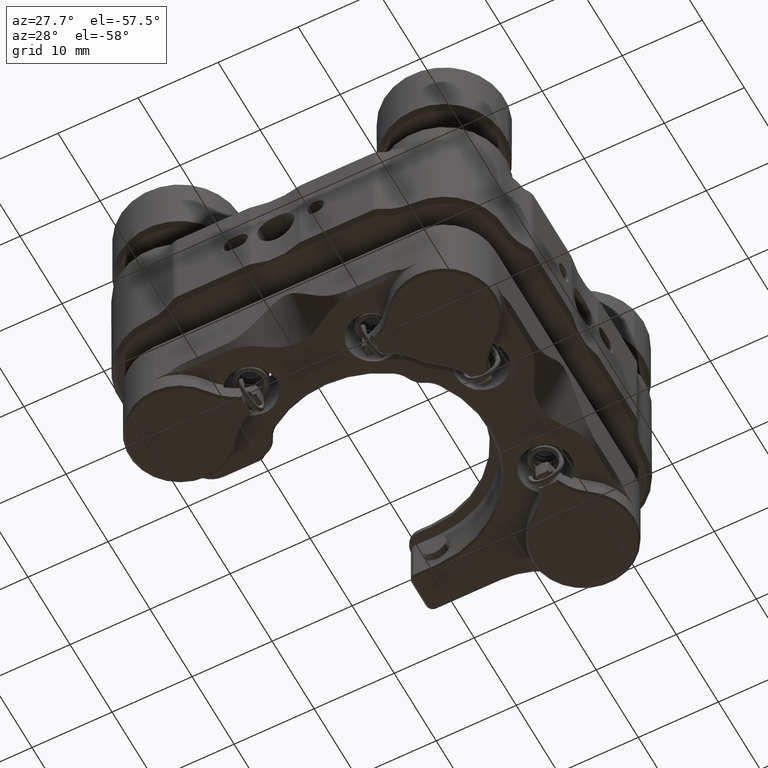
[diagram: clean part render]
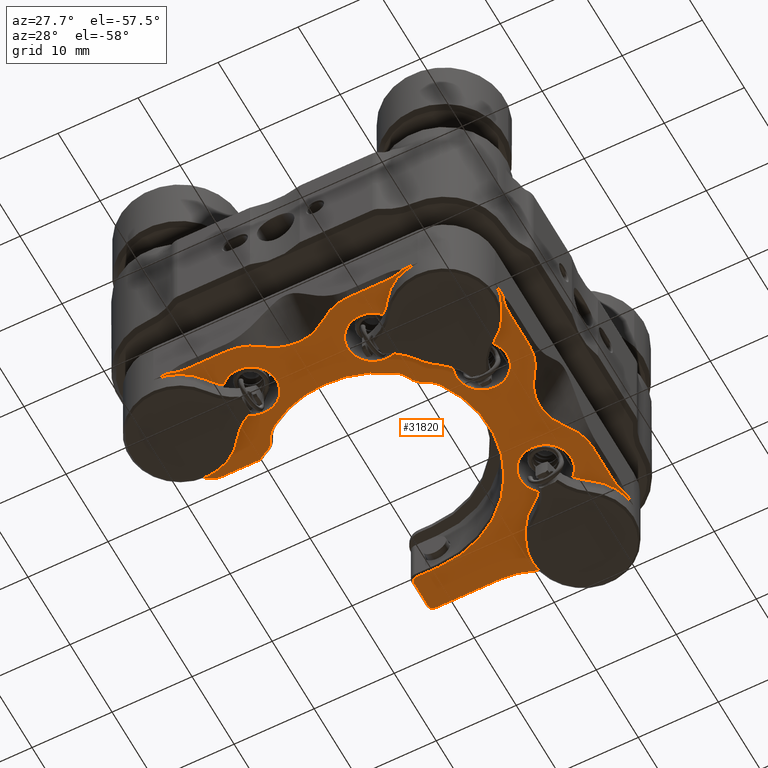
[diagram: same view with one face highlighted and labeled with its STEP entity id]
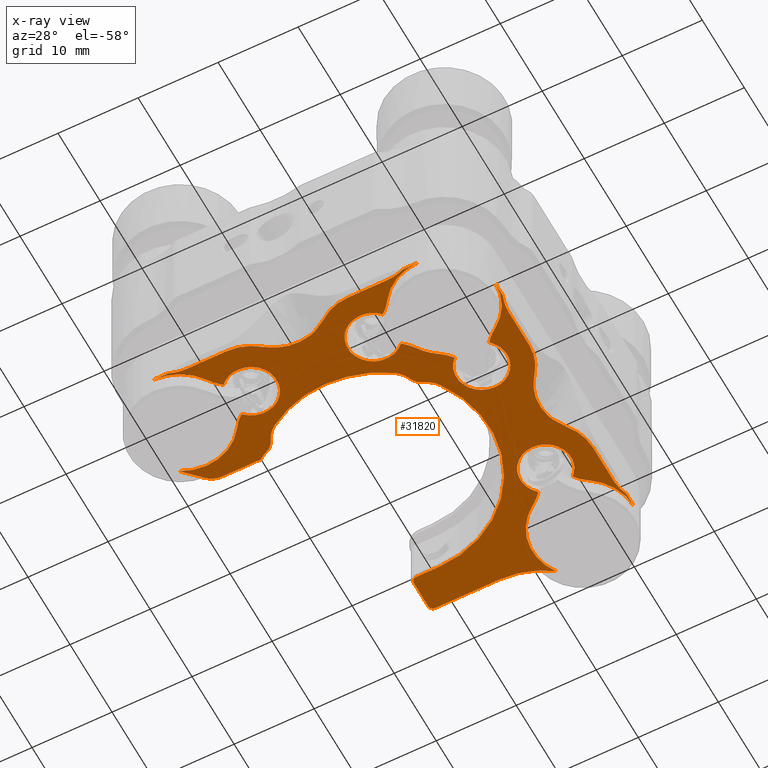
[diagram: x-ray of the same camera — body ghosted, the highlighted face saturated]
A machine part, auxiliary view. The second image highlights one B-rep face of the part: STEP entity #31820.
The next image is the same camera in x-ray: the body ghosted, the highlighted face saturated — about 0% of this face is hidden behind the body in this view.
In plain terms, the highlighted planar face has unit normal (0, 0, -1).
Its self-contained STEP definition (entity closure, byte-faithful):
#333 = CARTESIAN_POINT ( 'NONE',  ( -14.62492424454207729, 6.488614178602564841, 15.51670909685329569 ) ) ;
#360 = CIRCLE ( 'NONE', #36399, 6.477000000000003865 ) ;
#424 = VERTEX_POINT ( 'NONE', #53791 ) ;
#455 = CIRCLE ( 'NONE', #50912, 6.477000000000142421 ) ;
#669 = VECTOR ( 'NONE', #35140, 1000.000000000000000 ) ;
#818 = EDGE_CURVE ( 'NONE', #18316, #7982, #4268, .T. ) ;
#892 = CARTESIAN_POINT ( 'NONE',  ( -10.39521136364875531, 14.26694755603427467, 15.51670909685329391 ) ) ;
#960 = CARTESIAN_POINT ( 'NONE',  ( -15.61990764484549210, 6.920097788274669703, 15.51670909685326905 ) ) ;
#984 = VERTEX_POINT ( 'NONE', #11016 ) ;
#1721 = ORIENTED_EDGE ( 'NONE', *, *, #18592, .T. ) ;
#1784 = VERTEX_POINT ( 'NONE', #25245 ) ;
#1988 = DIRECTION ( 'NONE',  ( 0.000000000000000000, -0.000000000000000000, 1.000000000000000000 ) ) ;
#2828 = CIRCLE ( 'NONE', #62607, 6.349999999999823785 ) ;
#3026 = EDGE_CURVE ( 'NONE', #6349, #49002, #43898, .T. ) ;
#3269 = CIRCLE ( 'NONE', #21799, 6.350000000000057376 ) ;
#3301 = EDGE_CURVE ( 'NONE', #424, #57613, #4409, .T. ) ;
#3365 = EDGE_CURVE ( 'NONE', #11894, #58972, #43562, .T. ) ;
#3416 = EDGE_CURVE ( 'NONE', #49002, #10222, #59325, .T. ) ;
#3982 = VERTEX_POINT ( 'NONE', #4454 ) ;
#4015 = ORIENTED_EDGE ( 'NONE', *, *, #42541, .T. ) ;
#4036 = CARTESIAN_POINT ( 'NONE',  ( 2.037972884518743477, 35.49285773074532102, 15.51670909685322997 ) ) ;
#4098 = VERTEX_POINT ( 'NONE', #42872 ) ;
#4142 = CARTESIAN_POINT ( 'NONE',  ( 3.361159144591275183, 22.72973785281525849, 15.51670909685329391 ) ) ;
#4263 = EDGE_CURVE ( 'NONE', #23777, #7982, #38441, .T. ) ;
#4268 = LINE ( 'NONE', #20077, #63044 ) ;
#4330 = ORIENTED_EDGE ( 'NONE', *, *, #6463, .T. ) ;
#4409 = CIRCLE ( 'NONE', #27103, 3.250000000094590558 ) ;
#4454 = CARTESIAN_POINT ( 'NONE',  ( -31.60358071412598591, 8.549737292804435285, 15.51670909685329214 ) ) ;
#4629 = CARTESIAN_POINT ( 'NONE',  ( 0.3861615935071326389, 31.89590725106113922, 15.51670909685328326 ) ) ;
#4667 = ORIENTED_EDGE ( 'NONE', *, *, #43275, .T. ) ;
#4730 = CIRCLE ( 'NONE', #42861, 3.174999999999997158 ) ;
#4766 = ORIENTED_EDGE ( 'NONE', *, *, #6614, .T. ) ;
#4855 = CARTESIAN_POINT ( 'NONE',  ( -18.24621145719474313, 8.654519140301195179, 15.51670909685329747 ) ) ;
#4893 = VECTOR ( 'NONE', #53987, 1000.000000000000114 ) ;
#4945 = CIRCLE ( 'NONE', #41012, 6.349999999999520917 ) ;
#5054 = LINE ( 'NONE', #39574, #59817 ) ;
#5123 = CARTESIAN_POINT ( 'NONE',  ( 8.059857796865008694, 41.07009739724850306, 15.51670909685332056 ) ) ;
#5434 = DIRECTION ( 'NONE',  ( 0.000000000000000000, 1.000000000000000000, 0.000000000000000000 ) ) ;
#5448 = EDGE_CURVE ( 'NONE', #30676, #15930, #10668, .T. ) ;
#5535 = VERTEX_POINT ( 'NONE', #47456 ) ;
#5591 = CARTESIAN_POINT ( 'NONE',  ( -23.18884826638640462, 46.73409739722249157, 15.51670909682699318 ) ) ;
#5619 = ORIENTED_EDGE ( 'NONE', *, *, #31864, .T. ) ;
#5677 = DIRECTION ( 'NONE',  ( 1.000000000000000000, 0.000000000000000000, 0.000000000000000000 ) ) ;
#5714 = CARTESIAN_POINT ( 'NONE',  ( -1.685998107601222484, 38.57773429998619008, 15.51670909685328681 ) ) ;
#5800 = DIRECTION ( 'NONE',  ( -1.000000000000000000, 1.702056126997398924E-37, -6.132303471447327340E-21 ) ) ;
#5894 = CARTESIAN_POINT ( 'NONE',  ( -16.49245189026396474, 7.506371735881954166, 15.51670909685328503 ) ) ;
#5905 = CIRCLE ( 'NONE', #32646, 6.477000000000018076 ) ;
#5918 = VERTEX_POINT ( 'NONE', #49375 ) ;
#5982 = CARTESIAN_POINT ( 'NONE',  ( 0.7688773949802161223, 32.48049377337137145, 15.51670909685328681 ) ) ;
#6035 = VECTOR ( 'NONE', #8340, 1000.000000000000000 ) ;
#6083 = ORIENTED_EDGE ( 'NONE', *, *, #28316, .T. ) ;
#6113 = DIRECTION ( 'NONE',  ( 0.000000000000000000, -0.000000000000000000, 1.000000000000000000 ) ) ;
#6131 = EDGE_CURVE ( 'NONE', #38394, #15618, #30319, .T. ) ;
#6349 = VERTEX_POINT ( 'NONE', #59685 ) ;
#6424 = DIRECTION ( 'NONE',  ( -1.000000000000000000, 1.197522604163073116E-14, 0.000000000000000000 ) ) ;
#6463 = EDGE_CURVE ( 'NONE', #984, #6349, #49996, .T. ) ;
#6503 = CARTESIAN_POINT ( 'NONE',  ( -3.838848266386599928, 21.00409739724843661, 15.51670909685329391 ) ) ;
#6546 = AXIS2_PLACEMENT_3D ( 'NONE', #23539, #43537, #14481 ) ;
#6599 = CARTESIAN_POINT ( 'NONE',  ( -35.94646370033625971, 17.76409739724885384, 15.51670909680989752 ) ) ;
#6614 = EDGE_CURVE ( 'NONE', #11164, #46478, #360, .T. ) ;
#6685 = ORIENTED_EDGE ( 'NONE', *, *, #6131, .T. ) ;
#6949 = AXIS2_PLACEMENT_3D ( 'NONE', #49464, #50088, #21058 ) ;
#7100 = B_SPLINE_CURVE_WITH_KNOTS ( 'NONE', 3,
 ( #9507, #38563, #57920, #4036, #43096, #37924, #33069, #58878, #58241, #14032, #33391, #18570, #62765, #38239 ),
 .UNSPECIFIED., .F., .F.,
 ( 4, 1, 1, 1, 1, 1, 1, 1, 1, 1, 1, 4 ),
 ( 6.992893892674702526E-18, 0.0003477382795704050174, 0.0006951841594477878219, 0.001043483771312155852, 0.001393728023705116757, 0.001746971241152115361, 0.002125363837821009957, 0.002501072287317570794, 0.002873124663768459371, 0.003242771926865121307, 0.003611307865072148696, 0.003980093098585028681 ),
 .UNSPECIFIED. ) ;
#7253 = VERTEX_POINT ( 'NONE', #62537 ) ;
#7407 = DIRECTION ( 'NONE',  ( 1.000000000000000000, -1.261617073490087482E-14, 0.000000000000000000 ) ) ;
#7454 = CARTESIAN_POINT ( 'NONE',  ( 1.786634952259489761, 22.90017337540389875, 15.51670909685327970 ) ) ;
#7466 = CIRCLE ( 'NONE', #48705, 5.983382579064636886 ) ;
#7902 = CARTESIAN_POINT ( 'NONE',  ( -26.04013493042711502, 20.03927031059683728, 15.51670909686371402 ) ) ;
#7982 = VERTEX_POINT ( 'NONE', #40253 ) ;
#8063 = DIRECTION ( 'NONE',  ( 1.000000000000000000, -1.702056126997398924E-37, 6.132303471447327340E-21 ) ) ;
#8277 = VERTEX_POINT ( 'NONE', #35965 ) ;
#8340 = DIRECTION ( 'NONE',  ( -0.000000000000000000, -1.000000000000000000, -2.775557561562890118E-17 ) ) ;
#8534 = AXIS2_PLACEMENT_3D ( 'NONE', #44223, #50318, #25166 ) ;
#8768 = VERTEX_POINT ( 'NONE', #58666 ) ;
#9000 = EDGE_CURVE ( 'NONE', #15618, #984, #7466, .T. ) ;
#9004 = CARTESIAN_POINT ( 'NONE',  ( -29.02820644543855266, 18.76101813620716641, 15.51670909684858479 ) ) ;
#9018 = EDGE_CURVE ( 'NONE', #23777, #60095, #49724, .T. ) ;
#9049 = CARTESIAN_POINT ( 'NONE',  ( -24.49575477821458236, 7.281151687840906384, 15.51670909685305233 ) ) ;
#9357 = CARTESIAN_POINT ( 'NONE',  ( -13.15054098326073984, 6.205515148600590614, 15.51670909685326194 ) ) ;
#9360 = CARTESIAN_POINT ( 'NONE',  ( -25.47332380939019103, 6.722090202085043487, 15.51670909685303812 ) ) ;
#9507 = CARTESIAN_POINT ( 'NONE',  ( 2.076475217800556994, 36.18992986962069125, 15.51670909685328859 ) ) ;
#9779 = CARTESIAN_POINT ( 'NONE',  ( -0.3792700094390553112, 26.52146058805659123, 15.51670909685329036 ) ) ;
#9786 = CARTESIAN_POINT ( 'NONE',  ( -39.92470213663720813, 17.67494625747400150, 15.51670909685328681 ) ) ;
#9882 = CIRCLE ( 'NONE', #33533, 6.349999999999912603 ) ;
#10008 = CARTESIAN_POINT ( 'NONE',  ( -15.30284215189889530, 6.758897102431241422, 15.51670909685327793 ) ) ;
#10011 = CARTESIAN_POINT ( 'NONE',  ( -11.66949008744802541, 18.76101813620694614, 15.51670909680818866 ) ) ;
#10016 = CIRCLE ( 'NONE', #46083, 3.250000000017558399 ) ;
#10179 = DIRECTION ( 'NONE',  ( 6.132303471447327340E-21, 2.775557561562890118E-17, -1.000000000000000000 ) ) ;
#10222 = VERTEX_POINT ( 'NONE', #46207 ) ;
#10267 = CARTESIAN_POINT ( 'NONE',  ( -26.24320781081958742, 4.914089986270825605, 15.51670909685329214 ) ) ;
#10351 = CIRCLE ( 'NONE', #30984, 0.5499999999756255420 ) ;
#10561 = EDGE_CURVE ( 'NONE', #62752, #35923, #58760, .T. ) ;
#10668 = CIRCLE ( 'NONE', #13756, 6.349999999999823785 ) ;
#11016 = CARTESIAN_POINT ( 'NONE',  ( -7.902848266386782505, 6.198773913061501162, 15.51670909685332589 ) ) ;
#11121 = CARTESIAN_POINT ( 'NONE',  ( -14.45448872195326651, 4.914089986270841592, 15.51670909685329214 ) ) ;
#11164 = VERTEX_POINT ( 'NONE', #43911 ) ;
#11184 = VERTEX_POINT ( 'NONE', #58737 ) ;
#11325 = EDGE_CURVE ( 'NONE', #8277, #40603, #39708, .T. ) ;
#11894 = VERTEX_POINT ( 'NONE', #16140 ) ;
#12098 = EDGE_CURVE ( 'NONE', #5535, #11894, #40334, .T. ) ;
#12495 = DIRECTION ( 'NONE',  ( -8.604808798927877477E-31, -6.401193638290803747E-17, 1.000000000000000000 ) ) ;
#12755 = CIRCLE ( 'NONE', #21034, 6.476999999999836888 ) ;
#12805 = VERTEX_POINT ( 'NONE', #45736 ) ;
#12869 = DIRECTION ( 'NONE',  ( -0.000000000000000000, -0.000000000000000000, -1.000000000000000000 ) ) ;
#12939 = AXIS2_PLACEMENT_3D ( 'NONE', #29775, #49765, #15565 ) ;
#12943 = EDGE_CURVE ( 'NONE', #58972, #8768, #36049, .T. ) ;
#12946 = CARTESIAN_POINT ( 'NONE',  ( -37.89100734858389075, 19.70864104549656304, 15.51670909683159216 ) ) ;
#13005 = ORIENTED_EDGE ( 'NONE', *, *, #38390, .T. ) ;
#13282 = ORIENTED_EDGE ( 'NONE', *, *, #3301, .T. ) ;
#13414 = CARTESIAN_POINT ( 'NONE',  ( -23.73884826638870038, 42.72409739724872679, 15.51670909685552679 ) ) ;
#13470 = B_SPLINE_CURVE_WITH_KNOTS ( 'NONE', 3,
 ( #15579, #4629, #34945, #29149, #9779, #29469, #23991 ),
 .UNSPECIFIED., .F., .F.,
 ( 4, 1, 1, 1, 4 ),
 ( 0.000000000000000000, 0.002096372190921901978, 0.004192744381843768395, 0.006289116572765650857, 0.008385488763687514238 ),
 .UNSPECIFIED. ) ;
#13756 = AXIS2_PLACEMENT_3D ( 'NONE', #35880, #31029, #40401 ) ;
#13771 = EDGE_CURVE ( 'NONE', #54715, #26308, #52933, .T. ) ;
#13900 = DIRECTION ( 'NONE',  ( 6.132303471447328092E-21, 2.775557561562890427E-17, -1.000000000000000000 ) ) ;
#14032 = CARTESIAN_POINT ( 'NONE',  ( 1.386260972580441786, 33.40974970336114325, 15.51670909685327260 ) ) ;
#14065 = AXIS2_PLACEMENT_3D ( 'NONE', #27356, #12495, #47040 ) ;
#14313 = DIRECTION ( 'NONE',  ( -0.000000000000000000, -1.000000000000000000, -2.775557561562890118E-17 ) ) ;
#14333 = ORIENTED_EDGE ( 'NONE', *, *, #42410, .T. ) ;
#14469 = CARTESIAN_POINT ( 'NONE',  ( -9.055216516440953711, 21.13701639744731153, 15.51670909681782540 ) ) ;
#14481 = DIRECTION ( 'NONE',  ( 0.000000000000000000, 1.000000000000000000, 0.000000000000000000 ) ) ;
#14771 = ORIENTED_EDGE ( 'NONE', *, *, #4263, .F. ) ;
#14849 = CARTESIAN_POINT ( 'NONE',  ( -13.52267543826980223, 6.242103107961149533, 15.51670909685330280 ) ) ;
#15157 = VERTEX_POINT ( 'NONE', #5982 ) ;
#15312 = EDGE_CURVE ( 'NONE', #29187, #7253, #12755, .T. ) ;
#15516 = CIRCLE ( 'NONE', #45408, 5.983382579064534745 ) ;
#15565 = DIRECTION ( 'NONE',  ( 0.000000000000000000, 1.000000000000000000, 0.000000000000000000 ) ) ;
#15579 = CARTESIAN_POINT ( 'NONE',  ( 0.7688773949802161223, 32.48049377337137145, 15.51670909685328681 ) ) ;
#15618 = VERTEX_POINT ( 'NONE', #37552 ) ;
#15748 = DIRECTION ( 'NONE',  ( -1.000000000000000000, 1.197522604163073116E-14, 0.000000000000000000 ) ) ;
#15819 = DIRECTION ( 'NONE',  ( -1.000000000000000000, 1.702056126997398924E-37, -6.132303471447327340E-21 ) ) ;
#15845 = CARTESIAN_POINT ( 'NONE',  ( -7.403208370831027452, 17.36936494950948884, 15.51670909685329214 ) ) ;
#15930 = VERTEX_POINT ( 'NONE', #23683 ) ;
#15937 = ORIENTED_EDGE ( 'NONE', *, *, #53037, .T. ) ;
#16001 = CARTESIAN_POINT ( 'NONE',  ( -9.094115818647294347, 8.549737292804126199, 15.51670909685329214 ) ) ;
#16140 = CARTESIAN_POINT ( 'NONE',  ( -32.79484826638694983, 6.198773913061867091, 15.51670909685341115 ) ) ;
#16237 = CIRCLE ( 'NONE', #26498, 6.477000000000000313 ) ;
#16292 = VERTEX_POINT ( 'NONE', #5591 ) ;
#16421 = LINE ( 'NONE', #36088, #669 ) ;
#16938 = DIRECTION ( 'NONE',  ( 6.132303471447327340E-21, 2.775557561562890118E-17, -1.000000000000000000 ) ) ;
#17150 = CARTESIAN_POINT ( 'NONE',  ( -27.83592926617011543, 17.33046564732993744, 15.51670909686535715 ) ) ;
#17611 = EDGE_CURVE ( 'NONE', #51672, #4098, #15516, .T. ) ;
#17771 = CARTESIAN_POINT ( 'NONE',  ( -23.73884826636014367, 46.18409739724879870, 15.51670909682699850 ) ) ;
#17776 = CARTESIAN_POINT ( 'NONE',  ( -11.76402117973443850, 22.93281073320791918, 15.51670909678236576 ) ) ;
#17783 = CARTESIAN_POINT ( 'NONE',  ( 1.661647704327814390, 23.24447991452393225, 15.51670909685327437 ) ) ;
#18284 = DIRECTION ( 'NONE',  ( -0.000000000000000000, -0.000000000000000000, -1.000000000000000000 ) ) ;
#18316 = VERTEX_POINT ( 'NONE', #57320 ) ;
#18410 = EDGE_CURVE ( 'NONE', #16292, #54715, #5054, .T. ) ;
#18570 = CARTESIAN_POINT ( 'NONE',  ( 0.9940974430214276625, 32.77100390907634875, 15.51670909685323707 ) ) ;
#18592 = EDGE_CURVE ( 'NONE', #40603, #59001, #10351, .T. ) ;
#18744 = CARTESIAN_POINT ( 'NONE',  ( -25.82175011378088669, 6.577100956720730807, 15.51670909685306476 ) ) ;
#19066 = CARTESIAN_POINT ( 'NONE',  ( -5.940946378557530494, 42.17409739724867990, 15.51670909685328681 ) ) ;
#19161 = LINE ( 'NONE', #9786, #4893 ) ;
#19321 = AXIS2_PLACEMENT_3D ( 'NONE', #37302, #18284, #28276 ) ;
#19711 = DIRECTION ( 'NONE',  ( -1.000000000000000000, 1.702056126997398924E-37, -6.132303471447327340E-21 ) ) ;
#19717 = DIRECTION ( 'NONE',  ( 8.878505979408775095E-16, -1.000000000000000000, 0.000000000000000000 ) ) ;
#20077 = CARTESIAN_POINT ( 'NONE',  ( 2.511151733613322001, 12.11409739724846446, 15.51670909685329214 ) ) ;
#20217 = VERTEX_POINT ( 'NONE', #15845 ) ;
#20334 = CARTESIAN_POINT ( 'NONE',  ( -14.96923078366209481, 6.613601426534242655, 15.51670909685326194 ) ) ;
#20515 = DIRECTION ( 'NONE',  ( 1.000000000000000000, -1.009293658774008952E-14, 0.000000000000000000 ) ) ;
#20520 = B_SPLINE_CURVE_WITH_KNOTS ( 'NONE', 3,
 ( #53568, #62297, #9049, #22940, #57777, #9360, #18744, #48422, #37780, #42953, #38101, #38417, #57135, #29055 ),
 .UNSPECIFIED., .F., .F.,
 ( 4, 1, 1, 1, 1, 1, 1, 1, 1, 1, 1, 4 ),
 ( 0.000000000000000000, 0.0003709251294111492537, 0.0007415995169671750270, 0.001113391677934531679, 0.001487602908054061175, 0.001865491425777216807, 0.002246079665579186167, 0.002601372595551027130, 0.002953649158814848456, 0.003303969797670195004, 0.003653431750713343005, 0.004003187800114374126 ),
 .UNSPECIFIED. ) ;
#20595 = DIRECTION ( 'NONE',  ( 8.697706287643170523E-16, 1.000000000000000000, 2.899235429214390174E-16 ) ) ;
#20688 = VERTEX_POINT ( 'NONE', #9004 ) ;
#20800 = CARTESIAN_POINT ( 'NONE',  ( 2.076475217800485051, 21.05826492487646817, 15.51670909685328859 ) ) ;
#20991 = ORIENTED_EDGE ( 'NONE', *, *, #818, .T. ) ;
#21034 = AXIS2_PLACEMENT_3D ( 'NONE', #41460, #16938, #36597 ) ;
#21058 = DIRECTION ( 'NONE',  ( 1.775701195881755019E-15, -1.000000000000000000, 0.000000000000000000 ) ) ;
#21291 = DIRECTION ( 'NONE',  ( 6.132303471447327340E-21, 2.775557561562890118E-17, -1.000000000000000000 ) ) ;
#21510 = DIRECTION ( 'NONE',  ( -3.774936651295585469E-30, -2.668805347637135898E-16, 1.000000000000000000 ) ) ;
#21799 = AXIS2_PLACEMENT_3D ( 'NONE', #44240, #13900, #19717 ) ;
#21940 = DIRECTION ( 'NONE',  ( -6.132303471447328092E-21, -2.775557561562890427E-17, 1.000000000000000000 ) ) ;
#22019 = DIRECTION ( 'NONE',  ( -1.000000000000000000, 3.202566417189398390E-15, 0.000000000000000000 ) ) ;
#22315 = CARTESIAN_POINT ( 'NONE',  ( 2.074227632838780089, 21.18080093234989292, 15.51670909685328148 ) ) ;
#22336 = ORIENTED_EDGE ( 'NONE', *, *, #49092, .F. ) ;
#22434 = AXIS2_PLACEMENT_3D ( 'NONE', #6599, #40826, #20515 ) ;
#22502 = ORIENTED_EDGE ( 'NONE', *, *, #32174, .T. ) ;
#22586 = EDGE_CURVE ( 'NONE', #34736, #12805, #33549, .T. ) ;
#22940 = CARTESIAN_POINT ( 'NONE',  ( -24.80857185067238646, 7.076290245509763821, 15.51670909685301325 ) ) ;
#22966 = AXIS2_PLACEMENT_3D ( 'NONE', #43194, #33488, #62864 ) ;
#23005 = VECTOR ( 'NONE', #19711, 1000.000000000000000 ) ;
#23142 = ORIENTED_EDGE ( 'NONE', *, *, #60321, .T. ) ;
#23284 = CARTESIAN_POINT ( 'NONE',  ( 2.511151733613535164, 43.30900965794319291, 15.51670909685336319 ) ) ;
#23539 = CARTESIAN_POINT ( 'NONE',  ( -15.10383827969751991, 56.98409739724868217, 15.51670909685328859 ) ) ;
#23590 = DIRECTION ( 'NONE',  ( -6.132303471447327340E-21, -2.775557561562890118E-17, 1.000000000000000000 ) ) ;
#23683 = CARTESIAN_POINT ( 'NONE',  ( -31.60358071412591840, 15.67845750169312780, 15.51670909685329214 ) ) ;
#23723 = CARTESIAN_POINT ( 'NONE',  ( -3.838848266386589714, 5.764097397248486132, 15.51670909685329214 ) ) ;
#23777 = VERTEX_POINT ( 'NONE', #46729 ) ;
#23828 = DIRECTION ( 'NONE',  ( 6.132303471447327340E-21, 2.775557561562890118E-17, -1.000000000000000000 ) ) ;
#23991 = CARTESIAN_POINT ( 'NONE',  ( 0.7688773949801654961, 24.76770102112581284, 15.51670909685328503 ) ) ;
#24121 = CIRCLE ( 'NONE', #62240, 3.175000000000000711 ) ;
#24260 = VERTEX_POINT ( 'NONE', #5714 ) ;
#24763 = ORIENTED_EDGE ( 'NONE', *, *, #3365, .T. ) ;
#24789 = DIRECTION ( 'NONE',  ( -1.000000000000000000, -5.327345101181350931E-15, -4.058929600900076824E-15 ) ) ;
#24796 = DIRECTION ( 'NONE',  ( -1.176779250361673425E-30, -2.899235429214391653E-16, 1.000000000000000000 ) ) ;
#24848 = CARTESIAN_POINT ( 'NONE',  ( -16.49245189026396474, 7.506371735881954166, 15.51670909685328503 ) ) ;
#24904 = VECTOR ( 'NONE', #8063, 1000.000000000000000 ) ;
#25038 = DIRECTION ( 'NONE',  ( 1.000000000000000000, -1.702056126997398924E-37, 6.132303471447327340E-21 ) ) ;
#25166 = DIRECTION ( 'NONE',  ( -1.000000000000000000, 1.065922025772045116E-14, -3.769006057978502123E-15 ) ) ;
#25245 = CARTESIAN_POINT ( 'NONE',  ( 2.076475217800556994, 36.18992986962069125, 15.51670909685328859 ) ) ;
#25403 = CIRCLE ( 'NONE', #14065, 13.54999999999998650 ) ;
#25424 = CARTESIAN_POINT ( 'NONE',  ( -36.85884826638675094, 5.764097397248868049, 15.51670909685329214 ) ) ;
#25611 = ORIENTED_EDGE ( 'NONE', *, *, #13771, .T. ) ;
#25649 = CARTESIAN_POINT ( 'NONE',  ( -10.48576900533054967, 19.94473921813964878, 15.51670909675273968 ) ) ;
#25800 = CARTESIAN_POINT ( 'NONE',  ( -23.62065812019933020, 7.889087537355080393, 15.51670909685327970 ) ) ;
#25838 = DIRECTION ( 'NONE',  ( 0.000000000000000000, 1.000000000000000000, 0.000000000000000000 ) ) ;
#26118 = DIRECTION ( 'NONE',  ( -6.132303471447327340E-21, -2.775557561562890118E-17, 1.000000000000000000 ) ) ;
#26131 = CARTESIAN_POINT ( 'NONE',  ( -5.940946378557530494, 6.198773913061876861, 15.51670909685328681 ) ) ;
#26308 = VERTEX_POINT ( 'NONE', #49468 ) ;
#26498 = AXIS2_PLACEMENT_3D ( 'NONE', #35519, #55203, #25838 ) ;
#26582 = VECTOR ( 'NONE', #14313, 1000.000000000000000 ) ;
#27087 = ORIENTED_EDGE ( 'NONE', *, *, #10561, .T. ) ;
#27089 = DIRECTION ( 'NONE',  ( 6.132303471447327340E-21, 2.775557561562890118E-17, -1.000000000000000000 ) ) ;
#27103 = AXIS2_PLACEMENT_3D ( 'NONE', #35804, #6113, #44539 ) ;
#27148 = CARTESIAN_POINT ( 'NONE',  ( 2.069733982261448446, 21.42579011412260570, 15.51670909685329036 ) ) ;
#27150 = VECTOR ( 'NONE', #6424, 1000.000000000000000 ) ;
#27209 = DIRECTION ( 'NONE',  ( 0.000000000000000000, -1.000000000000000000, 0.000000000000000000 ) ) ;
#27356 = CARTESIAN_POINT ( 'NONE',  ( -20.34884826638631594, 28.62409739724868629, 15.51670909685328681 ) ) ;
#27370 = AXIS2_PLACEMENT_3D ( 'NONE', #27409, #27089, #46776 ) ;
#27409 = CARTESIAN_POINT ( 'NONE',  ( -5.940946378557530494, 34.55253646458609040, 15.51670909685328681 ) ) ;
#27896 = EDGE_CURVE ( 'NONE', #43190, #57495, #43879, .T. ) ;
#28043 = CARTESIAN_POINT ( 'NONE',  ( 2.076475217800569428, 34.55253646458609040, 15.51670909685328681 ) ) ;
#28060 = VERTEX_POINT ( 'NONE', #14469 ) ;
#28243 = DIRECTION ( 'NONE',  ( -2.135044278113766224E-15, 1.000000000000000000, 0.000000000000000000 ) ) ;
#28276 = DIRECTION ( 'NONE',  ( 1.000000000000000000, 1.541976423103409484E-15, 0.000000000000000000 ) ) ;
#28316 = EDGE_CURVE ( 'NONE', #3982, #32875, #47001, .T. ) ;
#28660 = ORIENTED_EDGE ( 'NONE', *, *, #42405, .T. ) ;
#28674 = CARTESIAN_POINT ( 'NONE',  ( -7.902848266386818921, 0.2153913339969369956, 15.51670909685334365 ) ) ;
#29055 = CARTESIAN_POINT ( 'NONE',  ( -27.91468073875908118, 6.198773913061875973, 15.51670909685328681 ) ) ;
#29149 = CARTESIAN_POINT ( 'NONE',  ( -0.6961521685797558145, 28.62409739724860458, 15.51670909685328681 ) ) ;
#29187 = VERTEX_POINT ( 'NONE', #29482 ) ;
#29469 = CARTESIAN_POINT ( 'NONE',  ( 0.3861615935070938366, 25.35228754343606639, 15.51670909685329036 ) ) ;
#29482 = CARTESIAN_POINT ( 'NONE',  ( -7.403208370831344531, 39.87882984498799743, 15.51670909685328859 ) ) ;
#29695 = CARTESIAN_POINT ( 'NONE',  ( -14.26259728644955516, 6.383058760446405522, 15.51670909685328503 ) ) ;
#29775 = CARTESIAN_POINT ( 'NONE',  ( -26.24320781081974019, 19.31410480822650300, 15.51670909685329391 ) ) ;
#29864 = DIRECTION ( 'NONE',  ( 0.000000000000000000, 1.000000000000000000, 0.000000000000000000 ) ) ;
#30005 = CARTESIAN_POINT ( 'NONE',  ( -20.34884826638671740, 8.971401299441929211, 15.51670909685329391 ) ) ;
#30319 = LINE ( 'NONE', #30952, #27150 ) ;
#30373 = EDGE_CURVE ( 'NONE', #58128, #43190, #35720, .T. ) ;
#30642 = CARTESIAN_POINT ( 'NONE',  ( -17.07703841257422894, 7.889087537355027990, 15.51670909685329747 ) ) ;
#30676 = VERTEX_POINT ( 'NONE', #34234 ) ;
#30867 = ORIENTED_EDGE ( 'NONE', *, *, #3026, .T. ) ;
#30952 = CARTESIAN_POINT ( 'NONE',  ( -36.85884826638675094, 5.764097397248868049, 15.51670909685329214 ) ) ;
#30984 = AXIS2_PLACEMENT_3D ( 'NONE', #53755, #54721, #5677 ) ;
#31029 = DIRECTION ( 'NONE',  ( 6.132303471447328092E-21, 2.775557561562890427E-17, -1.000000000000000000 ) ) ;
#31592 = DIRECTION ( 'NONE',  ( 0.000000000000000000, 1.000000000000000000, 0.000000000000000000 ) ) ;
#31676 = CARTESIAN_POINT ( 'NONE',  ( 0.8397541805533644821, 24.67647421621655113, 15.51670909685327260 ) ) ;
#31694 = EDGE_CURVE ( 'NONE', #32977, #38394, #9882, .T. ) ;
#31820 = ADVANCED_FACE ( 'NONE', ( #37397 ), #32556, .T. ) ;
#31864 = EDGE_CURVE ( 'NONE', #44028, #16292, #35618, .T. ) ;
#31984 = CARTESIAN_POINT ( 'NONE',  ( 2.033146022900886862, 21.79792456913161303, 15.51670909685326194 ) ) ;
#32174 = EDGE_CURVE ( 'NONE', #59001, #44028, #62891, .T. ) ;
#32249 = CARTESIAN_POINT ( 'NONE',  ( -15.10383827969758741, 46.73409739724873901, 15.51670909685328859 ) ) ;
#32556 = PLANE ( 'NONE',  #27370 ) ;
#32646 = AXIS2_PLACEMENT_3D ( 'NONE', #11121, #10179, #29864 ) ;
#32694 = CIRCLE ( 'NONE', #22434, 2.749999999934971129 ) ;
#32875 = VERTEX_POINT ( 'NONE', #63455 ) ;
#32922 = EDGE_CURVE ( 'NONE', #7253, #24260, #4730, .T. ) ;
#32937 = CARTESIAN_POINT ( 'NONE',  ( 1.355151342587423979, 23.89515677570731356, 15.51670909685327793 ) ) ;
#32977 = VERTEX_POINT ( 'NONE', #16001 ) ;
#33013 = ORIENTED_EDGE ( 'NONE', *, *, #18410, .T. ) ;
#33069 = CARTESIAN_POINT ( 'NONE',  ( 1.816700634818154025, 34.44357408373783613, 15.51670909685324595 ) ) ;
#33209 = EDGE_CURVE ( 'NONE', #5918, #15930, #53123, .T. ) ;
#33391 = CARTESIAN_POINT ( 'NONE',  ( 1.198958885352572334, 33.08382098153410311, 15.51670909685327970 ) ) ;
#33488 = DIRECTION ( 'NONE',  ( 6.132303471447328092E-21, 2.775557561562890427E-17, -1.000000000000000000 ) ) ;
#33533 = AXIS2_PLACEMENT_3D ( 'NONE', #60678, #21940, #56442 ) ;
#33549 = LINE ( 'NONE', #57442, #24904 ) ;
#33668 = CIRCLE ( 'NONE', #40871, 3.174999999999998934 ) ;
#33984 = CARTESIAN_POINT ( 'NONE',  ( -3.838848266386558183, 12.11409739724936507, 15.51670909685329391 ) ) ;
#34234 = CARTESIAN_POINT ( 'NONE',  ( -39.92470213663709444, 17.67494625747410808, 15.51670909685328859 ) ) ;
#34344 = VECTOR ( 'NONE', #5800, 1000.000000000000000 ) ;
#34397 = CIRCLE ( 'NONE', #56066, 3.250000000017560176 ) ;
#34528 = CARTESIAN_POINT ( 'NONE',  ( -16.21884818463415456, 7.293800976714763351, 15.51670909685325483 ) ) ;
#34736 = VERTEX_POINT ( 'NONE', #42453 ) ;
#34945 = CARTESIAN_POINT ( 'NONE',  ( -0.3792700094390220600, 30.72673420644066411, 15.51670909685329214 ) ) ;
#35054 = ORIENTED_EDGE ( 'NONE', *, *, #39220, .T. ) ;
#35140 = DIRECTION ( 'NONE',  ( -6.826743284340432976E-15, -1.000000000000000000, 0.000000000000000000 ) ) ;
#35519 = CARTESIAN_POINT ( 'NONE',  ( -11.03885567736440443, 22.72973785281530823, 15.51670909685329391 ) ) ;
#35600 = ORIENTED_EDGE ( 'NONE', *, *, #9018, .T. ) ;
#35618 = CIRCLE ( 'NONE', #52088, 0.5499999999754451308 ) ;
#35720 = CIRCLE ( 'NONE', #54137, 3.249999999998531841 ) ;
#35804 = CARTESIAN_POINT ( 'NONE',  ( -29.06174009400377756, 22.98569669769974766, 15.51670909675306653 ) ) ;
#35880 = CARTESIAN_POINT ( 'NONE',  ( -36.85884826638667278, 12.11409739724887658, 15.51670909685329214 ) ) ;
#35923 = VERTEX_POINT ( 'NONE', #20800 ) ;
#35965 = CARTESIAN_POINT ( 'NONE',  ( -20.34884826638622002, 42.17409739724867279, 15.51670909685328859 ) ) ;
#36049 = LINE ( 'NONE', #25424, #49811 ) ;
#36056 = ORIENTED_EDGE ( 'NONE', *, *, #42103, .T. ) ;
#36088 = CARTESIAN_POINT ( 'NONE',  ( 2.511151733613322001, 12.11409739724846446, 15.51670909685329569 ) ) ;
#36109 = CARTESIAN_POINT ( 'NONE',  ( -12.72884826638608757, 12.11409739724883572, 15.51670909685329391 ) ) ;
#36189 = CARTESIAN_POINT ( 'NONE',  ( -20.34884826638631949, 28.62409739724868629, 15.51670909685328681 ) ) ;
#36273 = DIRECTION ( 'NONE',  ( -8.697706287643120233E-16, 1.000000000000000000, 2.899235429214373411E-16 ) ) ;
#36373 = ORIENTED_EDGE ( 'NONE', *, *, #36830, .T. ) ;
#36399 = AXIS2_PLACEMENT_3D ( 'NONE', #41282, #41599, #46747 ) ;
#36508 = CARTESIAN_POINT ( 'NONE',  ( 0.7688773949801654961, 24.76770102112581284, 15.51670909685328503 ) ) ;
#36524 = DIRECTION ( 'NONE',  ( 0.000000000000000000, -0.000000000000000000, 1.000000000000000000 ) ) ;
#36597 = DIRECTION ( 'NONE',  ( 0.000000000000000000, 1.000000000000000000, 0.000000000000000000 ) ) ;
#36600 = EDGE_CURVE ( 'NONE', #62921, #51672, #16421, .T. ) ;
#36830 = EDGE_CURVE ( 'NONE', #28060, #8277, #25403, .T. ) ;
#37074 = CARTESIAN_POINT ( 'NONE',  ( -23.18884826638641172, 46.18409739724879159, 15.51670909680069599 ) ) ;
#37302 = CARTESIAN_POINT ( 'NONE',  ( -31.09687134042200185, 17.87607432321333434, 15.51670909683345378 ) ) ;
#37361 = AXIS2_PLACEMENT_3D ( 'NONE', #4142, #23828, #43520 ) ;
#37395 = ORIENTED_EDGE ( 'NONE', *, *, #32922, .T. ) ;
#37397 = FACE_OUTER_BOUND ( 'NONE', #47015, .T. ) ;
#37449 = DIRECTION ( 'NONE',  ( -1.000000000000000000, 0.000000000000000000, 0.000000000000000000 ) ) ;
#37552 = CARTESIAN_POINT ( 'NONE',  ( -5.663936005692040254, 5.764097397248495014, 15.51670909685339517 ) ) ;
#37780 = CARTESIAN_POINT ( 'NONE',  ( -26.51930401474814047, 6.362522059170713007, 15.51670909685305411 ) ) ;
#37924 = CARTESIAN_POINT ( 'NONE',  ( 1.912727071691647129, 34.79455314560993884, 15.51670909685326194 ) ) ;
#38101 = CARTESIAN_POINT ( 'NONE',  ( -27.21760859988353332, 6.237276246343605557, 15.51670909685306832 ) ) ;
#38117 = EDGE_CURVE ( 'NONE', #20688, #42341, #10016, .T. ) ;
#38132 = ORIENTED_EDGE ( 'NONE', *, *, #31694, .T. ) ;
#38239 = CARTESIAN_POINT ( 'NONE',  ( 0.7688773949802161223, 32.48049377337137145, 15.51670909685328681 ) ) ;
#38390 = EDGE_CURVE ( 'NONE', #1784, #15157, #7100, .T. ) ;
#38394 = VERTEX_POINT ( 'NONE', #23723 ) ;
#38417 = CARTESIAN_POINT ( 'NONE',  ( -27.56825700250591282, 6.204766437385389466, 15.51670909685284805 ) ) ;
#38441 = CIRCLE ( 'NONE', #22966, 6.349999999999912603 ) ;
#38536 = CIRCLE ( 'NONE', #43705, 13.54999999999999183 ) ;
#38563 = CARTESIAN_POINT ( 'NONE',  ( 2.074477149659839981, 36.07442291575711124, 15.51670909685310384 ) ) ;
#38940 = ORIENTED_EDGE ( 'NONE', *, *, #50398, .T. ) ;
#39005 = DIRECTION ( 'NONE',  ( -0.000000000000000000, -0.000000000000000000, -1.000000000000000000 ) ) ;
#39062 = CARTESIAN_POINT ( 'NONE',  ( -12.78301579401463428, 6.198773913061535801, 15.51670909685329036 ) ) ;
#39220 = EDGE_CURVE ( 'NONE', #8768, #3982, #2828, .T. ) ;
#39293 = ORIENTED_EDGE ( 'NONE', *, *, #12098, .T. ) ;
#39574 = CARTESIAN_POINT ( 'NONE',  ( -5.940946378557530494, 46.73409739724879586, 15.51670909685328681 ) ) ;
#39594 = VERTEX_POINT ( 'NONE', #48487 ) ;
#39708 = LINE ( 'NONE', #19066, #23005 ) ;
#39896 = CARTESIAN_POINT ( 'NONE',  ( -3.838848266386555519, 36.24409739724875834, 15.51670909685328681 ) ) ;
#40253 = CARTESIAN_POINT ( 'NONE',  ( 2.511151733613341541, 12.11409739724884638, 15.51670909685329391 ) ) ;
#40323 = CARTESIAN_POINT ( 'NONE',  ( -16.49245189026396474, 7.506371735881954166, 15.51670909685328503 ) ) ;
#40334 = LINE ( 'NONE', #26131, #45674 ) ;
#40401 = DIRECTION ( 'NONE',  ( -1.092739197465735659E-15, -1.000000000000000000, 0.000000000000000000 ) ) ;
#40494 = ORIENTED_EDGE ( 'NONE', *, *, #55577, .T. ) ;
#40541 = ORIENTED_EDGE ( 'NONE', *, *, #5448, .F. ) ;
#40603 = VERTEX_POINT ( 'NONE', #47691 ) ;
#40633 = ORIENTED_EDGE ( 'NONE', *, *, #27896, .T. ) ;
#40649 = CARTESIAN_POINT ( 'NONE',  ( -5.940946378557530494, 6.198773913061502938, 15.51670909685328681 ) ) ;
#40826 = DIRECTION ( 'NONE',  ( -0.000000000000000000, -0.000000000000000000, -1.000000000000000000 ) ) ;
#40871 = AXIS2_PLACEMENT_3D ( 'NONE', #36109, #26118, #55784 ) ;
#40892 = CARTESIAN_POINT ( 'NONE',  ( 2.076475217800552109, 16.17809739724857110, 15.51670909685325661 ) ) ;
#41012 = AXIS2_PLACEMENT_3D ( 'NONE', #33984, #48515, #53665 ) ;
#41282 = CARTESIAN_POINT ( 'NONE',  ( -14.45448872195322032, 19.31410480822652076, 15.51670909685329391 ) ) ;
#41427 = CARTESIAN_POINT ( 'NONE',  ( -36.85884826638667278, 12.11409739724887658, 15.51670909685329214 ) ) ;
#41460 = CARTESIAN_POINT ( 'NONE',  ( -11.03885567736428897, 34.51845694168186895, 15.51670909685328681 ) ) ;
#41599 = DIRECTION ( 'NONE',  ( 6.132303471447327340E-21, 2.775557561562890118E-17, -1.000000000000000000 ) ) ;
#41629 = AXIS2_PLACEMENT_3D ( 'NONE', #48735, #23590, #43905 ) ;
#42015 = CIRCLE ( 'NONE', #6949, 6.350000000000057376 ) ;
#42079 = DIRECTION ( 'NONE',  ( -9.246122681413035231E-31, -2.899235429214373411E-16, 1.000000000000000000 ) ) ;
#42103 = EDGE_CURVE ( 'NONE', #57495, #28060, #34397, .T. ) ;
#42310 = CARTESIAN_POINT ( 'NONE',  ( 1.516352028430838939, 23.57809128276069899, 15.51670909685327793 ) ) ;
#42341 = VERTEX_POINT ( 'NONE', #17150 ) ;
#42405 = EDGE_CURVE ( 'NONE', #60095, #11184, #24121, .T. ) ;
#42410 = EDGE_CURVE ( 'NONE', #42341, #58128, #38536, .T. ) ;
#42453 = CARTESIAN_POINT ( 'NONE',  ( -35.94646370033622418, 20.51409739722716807, 15.51670909683159216 ) ) ;
#42541 = EDGE_CURVE ( 'NONE', #10222, #5535, #20520, .T. ) ;
#42584 = DIRECTION ( 'NONE',  ( -0.000000000000000000, -0.000000000000000000, -1.000000000000000000 ) ) ;
#42638 = CARTESIAN_POINT ( 'NONE',  ( 1.892190370415640865, 22.53784641731140681, 15.51670909685327615 ) ) ;
#42700 = EDGE_CURVE ( 'NONE', #32875, #5918, #47831, .T. ) ;
#42748 = ORIENTED_EDGE ( 'NONE', *, *, #22586, .T. ) ;
#42829 = ORIENTED_EDGE ( 'NONE', *, *, #60913, .F. ) ;
#42861 = AXIS2_PLACEMENT_3D ( 'NONE', #39896, #44738, #59572 ) ;
#42872 = CARTESIAN_POINT ( 'NONE',  ( 2.076475217800568096, 41.07009739724851727, 15.51670909685330457 ) ) ;
#42953 = CARTESIAN_POINT ( 'NONE',  ( -26.86736857224785879, 6.289260529386440091, 15.51670909685302746 ) ) ;
#43096 = CARTESIAN_POINT ( 'NONE',  ( 1.985988601475944249, 35.14261770310962163, 15.51670909685321931 ) ) ;
#43190 = VERTEX_POINT ( 'NONE', #10011 ) ;
#43194 = CARTESIAN_POINT ( 'NONE',  ( -3.838848266386551522, 12.11409739724841117, 15.51670909685329391 ) ) ;
#43275 = EDGE_CURVE ( 'NONE', #24260, #48268, #455, .T. ) ;
#43520 = DIRECTION ( 'NONE',  ( 0.000000000000000000, 1.000000000000000000, 0.000000000000000000 ) ) ;
#43537 = DIRECTION ( 'NONE',  ( -1.145704904454037332E-30, -8.462065736472231082E-17, 1.000000000000000000 ) ) ;
#43562 = CIRCLE ( 'NONE', #8534, 5.983382579064860707 ) ;
#43705 = AXIS2_PLACEMENT_3D ( 'NONE', #36189, #55867, #61034 ) ;
#43879 = CIRCLE ( 'NONE', #50083, 2.249999999940072382 ) ;
#43898 = B_SPLINE_CURVE_WITH_KNOTS ( 'NONE', 3,
 ( #39062, #58414, #9357, #14849, #45169, #29695, #333, #20334, #10008, #960, #60329, #34528, #49376, #24848 ),
 .UNSPECIFIED., .F., .F.,
 ( 4, 1, 1, 1, 1, 1, 1, 1, 1, 1, 1, 4 ),
 ( 3.576224061345498009E-18, 0.0003709251294111429111, 0.0007415995169671451030, 0.001113391677934453183, 0.001487602908053955357, 0.001865491425777084100, 0.002246079665579010527, 0.002601372595550835876, 0.002953649158814622075, 0.003303969797669965153, 0.003653431750713082363, 0.004003187800114000293 ),
 .UNSPECIFIED. ) ;
#43905 = DIRECTION ( 'NONE',  ( 0.000000000000000000, -1.000000000000000000, 0.000000000000000000 ) ) ;
#43911 = CARTESIAN_POINT ( 'NONE',  ( -9.094115818647173555, 15.67845750169325569, 15.51670909685329214 ) ) ;
#44028 = VERTEX_POINT ( 'NONE', #17771 ) ;
#44223 = CARTESIAN_POINT ( 'NONE',  ( -32.79484826638698536, 0.2153913339970236207, 15.51670909685334543 ) ) ;
#44240 = CARTESIAN_POINT ( 'NONE',  ( -3.838848266386433394, 45.13409739724853864, 15.51670909685328681 ) ) ;
#44283 = DIRECTION ( 'NONE',  ( -6.826743284340432976E-15, -1.000000000000000000, 0.000000000000000000 ) ) ;
#44539 = DIRECTION ( 'NONE',  ( -1.000000000000000000, 1.067522139031580596E-15, 0.000000000000000000 ) ) ;
#44738 = DIRECTION ( 'NONE',  ( -6.132303471447327340E-21, -2.775557561562890118E-17, 1.000000000000000000 ) ) ;
#44779 = ORIENTED_EDGE ( 'NONE', *, *, #11325, .T. ) ;
#45112 = CARTESIAN_POINT ( 'NONE',  ( -9.600825192350919579, 17.87607432321304657, 15.51670909672311360 ) ) ;
#45169 = CARTESIAN_POINT ( 'NONE',  ( -13.89401189425175787, 6.300591055869191770, 15.51670909685326194 ) ) ;
#45312 = EDGE_CURVE ( 'NONE', #46478, #39594, #33668, .T. ) ;
#45408 = AXIS2_PLACEMENT_3D ( 'NONE', #5123, #24796, #20595 ) ;
#45674 = VECTOR ( 'NONE', #15819, 1000.000000000000000 ) ;
#45736 = CARTESIAN_POINT ( 'NONE',  ( -31.36607029332726171, 20.51409739723589354, 15.51670909684036204 ) ) ;
#46078 = AXIS2_PLACEMENT_3D ( 'NONE', #57731, #42584, #7407 ) ;
#46083 = AXIS2_PLACEMENT_3D ( 'NONE', #7902, #21510, #28243 ) ;
#46207 = CARTESIAN_POINT ( 'NONE',  ( -24.20524464250955177, 7.506371735881998575, 15.51670909685328859 ) ) ;
#46478 = VERTEX_POINT ( 'NONE', #892 ) ;
#46688 = VERTEX_POINT ( 'NONE', #40892 ) ;
#46729 = CARTESIAN_POINT ( 'NONE',  ( -0.2744881619421613017, 17.36936494950916199, 15.51670909685329391 ) ) ;
#46747 = DIRECTION ( 'NONE',  ( 0.000000000000000000, 1.000000000000000000, 0.000000000000000000 ) ) ;
#46776 = DIRECTION ( 'NONE',  ( 0.000000000000000000, 1.000000000000000000, 2.775557561562890118E-17 ) ) ;
#46835 = CARTESIAN_POINT ( 'NONE',  ( 2.076475217800485051, 21.05826492487646817, 15.51670909685328859 ) ) ;
#46890 = DIRECTION ( 'NONE',  ( -6.132303471447328092E-21, -2.775557561562890427E-17, 1.000000000000000000 ) ) ;
#47001 = CIRCLE ( 'NONE', #60413, 6.477000000000166402 ) ;
#47015 = EDGE_LOOP ( 'NONE', ( #33013, #25611, #42829, #50969, #37395, #4667, #22336, #49613, #54562, #15937, #13005, #23142, #27087, #56534, #51062, #20991, #14771, #35600, #28660, #60292, #38940, #4766, #52800, #61683, #38132, #6685, #62414, #4330, #30867, #48311, #4015, #39293, #24763, #49294, #35054, #6083, #57547, #49582, #40541, #48139, #58928, #42748, #62197, #13282, #40494, #55950, #14333, #57037, #40633, #36056, #36373, #44779, #1721, #22502, #5619 ) ) ;
#47040 = DIRECTION ( 'NONE',  ( -1.331448276764487909E-14, 1.000000000000000000, 0.000000000000000000 ) ) ;
#47123 = CIRCLE ( 'NONE', #19321, 2.249999999981155963 ) ;
#47408 = CARTESIAN_POINT ( 'NONE',  ( -23.73884826638646572, 34.55253646458609040, 15.51670909685328681 ) ) ;
#47456 = CARTESIAN_POINT ( 'NONE',  ( -27.91468073875908118, 6.198773913061875973, 15.51670909685328681 ) ) ;
#47691 = CARTESIAN_POINT ( 'NONE',  ( -23.18884826638645791, 42.17409739726088702, 15.51670909685776500 ) ) ;
#47831 = CIRCLE ( 'NONE', #41629, 3.175000000000000711 ) ;
#47919 = EDGE_CURVE ( 'NONE', #39594, #32977, #5905, .T. ) ;
#48004 = EDGE_CURVE ( 'NONE', #46688, #18316, #56363, .T. ) ;
#48139 = ORIENTED_EDGE ( 'NONE', *, *, #50195, .T. ) ;
#48268 = VERTEX_POINT ( 'NONE', #57220 ) ;
#48311 = ORIENTED_EDGE ( 'NONE', *, *, #3416, .T. ) ;
#48354 = DIRECTION ( 'NONE',  ( -3.913967829439528893E-15, -3.624044286517996790E-15, 1.000000000000000000 ) ) ;
#48422 = CARTESIAN_POINT ( 'NONE',  ( -26.16832495287607685, 6.458548496044214993, 15.51670909685305233 ) ) ;
#48487 = CARTESIAN_POINT ( 'NONE',  ( -10.39521136364892584, 9.961247238463206699, 15.51670909685329214 ) ) ;
#48515 = DIRECTION ( 'NONE',  ( -6.132303471447327340E-21, -2.775557561562890118E-17, 1.000000000000000000 ) ) ;
#48683 = DIRECTION ( 'NONE',  ( 0.000000000000000000, 1.000000000000000000, 2.775557561562890118E-17 ) ) ;
#48705 = AXIS2_PLACEMENT_3D ( 'NONE', #28674, #48354, #24789 ) ;
#48735 = CARTESIAN_POINT ( 'NONE',  ( -27.96884826638642352, 12.11409739724861723, 15.51670909685329214 ) ) ;
#48836 = LINE ( 'NONE', #53030, #26582 ) ;
#49002 = VERTEX_POINT ( 'NONE', #5894 ) ;
#49092 = EDGE_CURVE ( 'NONE', #62921, #48268, #42015, .T. ) ;
#49214 = CIRCLE ( 'NONE', #46078, 0.5499999999771520987 ) ;
#49294 = ORIENTED_EDGE ( 'NONE', *, *, #12943, .T. ) ;
#49375 = CARTESIAN_POINT ( 'NONE',  ( -30.30248516912383039, 14.26694755603398690, 15.51670909685329214 ) ) ;
#49376 = CARTESIAN_POINT ( 'NONE',  ( -16.40122508535472079, 7.435494950308754625, 15.51670909685326372 ) ) ;
#49464 = CARTESIAN_POINT ( 'NONE',  ( -3.838848266386433394, 45.13409739724853864, 15.51670909685329569 ) ) ;
#49468 = CARTESIAN_POINT ( 'NONE',  ( -9.117330396485833433, 48.66398782079174623, 15.51670909685298128 ) ) ;
#49582 = ORIENTED_EDGE ( 'NONE', *, *, #33209, .T. ) ;
#49610 = EDGE_CURVE ( 'NONE', #61772, #34736, #32694, .T. ) ;
#49613 = ORIENTED_EDGE ( 'NONE', *, *, #36600, .T. ) ;
#49631 = DIRECTION ( 'NONE',  ( 6.132303471447327340E-21, 2.775557561562890118E-17, -1.000000000000000000 ) ) ;
#49684 = CARTESIAN_POINT ( 'NONE',  ( -22.45148507557892614, 8.654519140301175639, 15.51670909685328326 ) ) ;
#49724 = CIRCLE ( 'NONE', #37361, 6.477000000000013635 ) ;
#49765 = DIRECTION ( 'NONE',  ( 6.132303471447327340E-21, 2.775557561562890118E-17, -1.000000000000000000 ) ) ;
#49811 = VECTOR ( 'NONE', #15748, 1000.000000000000000 ) ;
#49996 = LINE ( 'NONE', #40649, #34344 ) ;
#50083 = AXIS2_PLACEMENT_3D ( 'NONE', #45112, #39005, #58670 ) ;
#50088 = DIRECTION ( 'NONE',  ( 6.132303471447328092E-21, 2.775557561562890427E-17, -1.000000000000000000 ) ) ;
#50195 = EDGE_CURVE ( 'NONE', #30676, #61772, #19161, .T. ) ;
#50279 = EDGE_CURVE ( 'NONE', #35923, #46688, #48836, .T. ) ;
#50318 = DIRECTION ( 'NONE',  ( -3.624044286517840595E-15, -3.624044286517745143E-15, 1.000000000000000000 ) ) ;
#50398 = EDGE_CURVE ( 'NONE', #20217, #11164, #4945, .T. ) ;
#50912 = AXIS2_PLACEMENT_3D ( 'NONE', #61270, #21291, #31592 ) ;
#50969 = ORIENTED_EDGE ( 'NONE', *, *, #15312, .T. ) ;
#51062 = ORIENTED_EDGE ( 'NONE', *, *, #48004, .T. ) ;
#51338 = DIRECTION ( 'NONE',  ( 0.000000000000000000, -1.000000000000000000, 0.000000000000000000 ) ) ;
#51672 = VERTEX_POINT ( 'NONE', #23284 ) ;
#52088 = AXIS2_PLACEMENT_3D ( 'NONE', #37074, #12869, #52231 ) ;
#52231 = DIRECTION ( 'NONE',  ( 1.000000000000000000, 0.000000000000000000, 0.000000000000000000 ) ) ;
#52543 = LINE ( 'NONE', #28043, #6035 ) ;
#52609 = CARTESIAN_POINT ( 'NONE',  ( 0.9814481541473405457, 24.49409731549600977, 15.51670909685327437 ) ) ;
#52800 = ORIENTED_EDGE ( 'NONE', *, *, #45312, .T. ) ;
#52933 = CIRCLE ( 'NONE', #6546, 10.24999999999998757 ) ;
#53030 = CARTESIAN_POINT ( 'NONE',  ( 2.076475217800488160, 34.55253646458609040, 15.51670909685328681 ) ) ;
#53037 = EDGE_CURVE ( 'NONE', #4098, #1784, #52543, .T. ) ;
#53123 = CIRCLE ( 'NONE', #12939, 6.476999999999978996 ) ;
#53193 = CARTESIAN_POINT ( 'NONE',  ( 0.7688773949801654961, 24.76770102112581284, 15.51670909685328503 ) ) ;
#53566 = CARTESIAN_POINT ( 'NONE',  ( -30.26431764869031227, 19.96637438549547738, 15.51670909681701183 ) ) ;
#53568 = CARTESIAN_POINT ( 'NONE',  ( -24.20524464250955177, 7.506371735881998575, 15.51670909685328859 ) ) ;
#53665 = DIRECTION ( 'NONE',  ( 8.878505979409525499E-16, 1.000000000000000000, 0.000000000000000000 ) ) ;
#53755 = CARTESIAN_POINT ( 'NONE',  ( -23.18884826638645436, 42.72409739724871969, 15.51670909685776500 ) ) ;
#53791 = CARTESIAN_POINT ( 'NONE',  ( -31.03254881715267288, 20.40143413800605998, 15.51670909678486332 ) ) ;
#53987 = DIRECTION ( 'NONE',  ( 0.7071067811865602293, 0.7071067811865348052, 0.000000000000000000 ) ) ;
#54137 = AXIS2_PLACEMENT_3D ( 'NONE', #61061, #36524, #22019 ) ;
#54206 = CARTESIAN_POINT ( 'NONE',  ( -12.86176726659433278, 17.33046564735450090, 15.51670909687327438 ) ) ;
#54562 = ORIENTED_EDGE ( 'NONE', *, *, #17611, .T. ) ;
#54570 = EDGE_CURVE ( 'NONE', #11184, #20217, #16237, .T. ) ;
#54654 = EDGE_CURVE ( 'NONE', #12805, #424, #49214, .T. ) ;
#54715 = VERTEX_POINT ( 'NONE', #32249 ) ;
#54721 = DIRECTION ( 'NONE',  ( -0.000000000000000000, -0.000000000000000000, -1.000000000000000000 ) ) ;
#55203 = DIRECTION ( 'NONE',  ( 6.132303471447327340E-21, 2.775557561562890118E-17, -1.000000000000000000 ) ) ;
#55481 = CARTESIAN_POINT ( 'NONE',  ( -24.20524464250955177, 7.506371735881998575, 15.51670909685328859 ) ) ;
#55577 = EDGE_CURVE ( 'NONE', #57613, #20688, #47123, .T. ) ;
#55784 = DIRECTION ( 'NONE',  ( 0.000000000000000000, -1.000000000000000000, 0.000000000000000000 ) ) ;
#55867 = DIRECTION ( 'NONE',  ( 0.000000000000000000, -0.000000000000000000, 1.000000000000000000 ) ) ;
#55950 = ORIENTED_EDGE ( 'NONE', *, *, #38117, .T. ) ;
#56066 = AXIS2_PLACEMENT_3D ( 'NONE', #17776, #1988, #37449 ) ;
#56194 = VECTOR ( 'NONE', #48683, 1000.000000000000000 ) ;
#56363 = CIRCLE ( 'NONE', #57385, 5.983382579064569384 ) ;
#56442 = DIRECTION ( 'NONE',  ( 0.000000000000000000, -1.000000000000000000, 0.000000000000000000 ) ) ;
#56534 = ORIENTED_EDGE ( 'NONE', *, *, #50279, .T. ) ;
#57037 = ORIENTED_EDGE ( 'NONE', *, *, #30373, .T. ) ;
#57135 = CARTESIAN_POINT ( 'NONE',  ( -27.79917378489542301, 6.200771981202340299, 15.51670909685342714 ) ) ;
#57220 = CARTESIAN_POINT ( 'NONE',  ( -0.2744881619419906604, 39.87882984498777716, 15.51670909685328859 ) ) ;
#57320 = CARTESIAN_POINT ( 'NONE',  ( 2.511151733613334880, 13.93918513655445857, 15.51670909685319621 ) ) ;
#57385 = AXIS2_PLACEMENT_3D ( 'NONE', #61425, #42079, #36273 ) ;
#57442 = CARTESIAN_POINT ( 'NONE',  ( -5.940946378557530494, 20.51409739724886094, 15.51670909685328681 ) ) ;
#57495 = VERTEX_POINT ( 'NONE', #25649 ) ;
#57547 = ORIENTED_EDGE ( 'NONE', *, *, #42700, .T. ) ;
#57613 = VERTEX_POINT ( 'NONE', #53566 ) ;
#57731 = CARTESIAN_POINT ( 'NONE',  ( -31.36607029332727592, 19.96409739724879273, 15.51670909682742305 ) ) ;
#57777 = CARTESIAN_POINT ( 'NONE',  ( -25.13450057249937686, 6.888988158281927454, 15.51670909685306121 ) ) ;
#57784 = CARTESIAN_POINT ( 'NONE',  ( 1.974658074992842405, 22.16926102511358110, 15.51670909685329391 ) ) ;
#57920 = CARTESIAN_POINT ( 'NONE',  ( 2.070482693477078140, 35.84350613336766855, 15.51670909685331701 ) ) ;
#57946 = CARTESIAN_POINT ( 'NONE',  ( -35.03376052708178179, 5.764097397248846733, 15.51670909685332944 ) ) ;
#58128 = VERTEX_POINT ( 'NONE', #54206 ) ;
#58189 = CARTESIAN_POINT ( 'NONE',  ( -1.685998107601196283, 18.67046049451106171, 15.51670909685329391 ) ) ;
#58241 = CARTESIAN_POINT ( 'NONE',  ( 1.553158928777319758, 33.74857294025194676, 15.51670909685324062 ) ) ;
#58414 = CARTESIAN_POINT ( 'NONE',  ( -12.90555180148804659, 6.201021498023240319, 15.51670909685327260 ) ) ;
#58666 = CARTESIAN_POINT ( 'NONE',  ( -36.85884826638671541, 5.764097397248960419, 15.51670909685329214 ) ) ;
#58670 = DIRECTION ( 'NONE',  ( 1.000000000000000000, -1.541976423131564915E-15, 0.000000000000000000 ) ) ;
#58737 = CARTESIAN_POINT ( 'NONE',  ( -5.991698425171994913, 18.67046049451105461, 15.51670909685329391 ) ) ;
#58760 = B_SPLINE_CURVE_WITH_KNOTS ( 'NONE', 3,
 ( #36508, #31676, #52609, #61663, #32937, #42310, #17783, #7454, #42638, #57784, #31984, #27148, #22315, #46835 ),
 .UNSPECIFIED., .F., .F.,
 ( 4, 1, 1, 1, 1, 1, 1, 1, 1, 1, 1, 4 ),
 ( 1.084202172485504434E-19, 0.0003477382795704333151, 0.0006951841594477864124, 0.001043483771312189029, 0.001393728023705121527, 0.001746971241152147671, 0.002125363837821022533, 0.002501072287317581636, 0.002873124663768479321, 0.003242771926865116970, 0.003611307865072153032, 0.003980093098585034753 ),
 .UNSPECIFIED. ) ;
#58878 = CARTESIAN_POINT ( 'NONE',  ( 1.698148174141661304, 34.09699924464267440, 15.51670909685326016 ) ) ;
#58928 = ORIENTED_EDGE ( 'NONE', *, *, #49610, .T. ) ;
#58972 = VERTEX_POINT ( 'NONE', #57946 ) ;
#59001 = VERTEX_POINT ( 'NONE', #13414 ) ;
#59325 = B_SPLINE_CURVE_WITH_KNOTS ( 'NONE', 3,
 ( #40323, #30642, #4855, #30005, #49684, #25800, #55481 ),
 .UNSPECIFIED., .F., .F.,
 ( 4, 1, 1, 1, 4 ),
 ( 3.878959614448864246E-18, 0.002064273810225145372, 0.004128547620450315030, 0.006192821430675440018, 0.008257095240900815675 ),
 .UNSPECIFIED. ) ;
#59572 = DIRECTION ( 'NONE',  ( 0.000000000000000000, -1.000000000000000000, 0.000000000000000000 ) ) ;
#59685 = CARTESIAN_POINT ( 'NONE',  ( -12.78301579401463428, 6.198773913061535801, 15.51670909685329036 ) ) ;
#59817 = VECTOR ( 'NONE', #25038, 1000.000000000000000 ) ;
#60095 = VERTEX_POINT ( 'NONE', #58189 ) ;
#60292 = ORIENTED_EDGE ( 'NONE', *, *, #54570, .T. ) ;
#60321 = EDGE_CURVE ( 'NONE', #15157, #62752, #13470, .T. ) ;
#60329 = CARTESIAN_POINT ( 'NONE',  ( -15.92532498064471191, 7.099236543531488586, 15.51670909685328503 ) ) ;
#60413 = AXIS2_PLACEMENT_3D ( 'NONE', #10267, #49631, #5434 ) ;
#60678 = CARTESIAN_POINT ( 'NONE',  ( -3.838848266386551522, 12.11409739724841117, 15.51670909685329214 ) ) ;
#60727 = DIRECTION ( 'NONE',  ( -6.132303471447327340E-21, -2.775557561562890118E-17, 1.000000000000000000 ) ) ;
#60913 = EDGE_CURVE ( 'NONE', #29187, #26308, #3269, .T. ) ;
#61034 = DIRECTION ( 'NONE',  ( -1.000000000000000000, 7.681432365948965976E-16, 0.000000000000000000 ) ) ;
#61061 = CARTESIAN_POINT ( 'NONE',  ( -14.65756160234574246, 20.03927031059668096, 15.51670909689326194 ) ) ;
#61270 = CARTESIAN_POINT ( 'NONE',  ( 3.361159144591233883, 34.51845694168176237, 15.51670909685328681 ) ) ;
#61425 = CARTESIAN_POINT ( 'NONE',  ( 8.059857796865049551, 16.17809739724855689, 15.51670909685309852 ) ) ;
#61663 = CARTESIAN_POINT ( 'NONE',  ( 1.176012587330590664, 24.20057411150653337, 15.51670909685327437 ) ) ;
#61683 = ORIENTED_EDGE ( 'NONE', *, *, #47919, .T. ) ;
#61772 = VERTEX_POINT ( 'NONE', #12946 ) ;
#62197 = ORIENTED_EDGE ( 'NONE', *, *, #54654, .T. ) ;
#62240 = AXIS2_PLACEMENT_3D ( 'NONE', #6503, #60727, #51338 ) ;
#62297 = CARTESIAN_POINT ( 'NONE',  ( -24.30210317956085575, 7.431281466432694494, 15.51670909685304522 ) ) ;
#62414 = ORIENTED_EDGE ( 'NONE', *, *, #9000, .T. ) ;
#62537 = CARTESIAN_POINT ( 'NONE',  ( -5.991698425172041986, 38.57773429998606929, 15.51670909685328681 ) ) ;
#62607 = AXIS2_PLACEMENT_3D ( 'NONE', #41427, #46890, #27209 ) ;
#62752 = VERTEX_POINT ( 'NONE', #53193 ) ;
#62765 = CARTESIAN_POINT ( 'NONE',  ( 0.8439676644296312258, 32.57735231042258306, 15.51670909685324951 ) ) ;
#62864 = DIRECTION ( 'NONE',  ( -1.775701195881795448E-15, -1.000000000000000000, 0.000000000000000000 ) ) ;
#62891 = LINE ( 'NONE', #47408, #56194 ) ;
#62921 = VERTEX_POINT ( 'NONE', #63200 ) ;
#63044 = VECTOR ( 'NONE', #44283, 1000.000000000000000 ) ;
#63200 = CARTESIAN_POINT ( 'NONE',  ( 2.511151733613547155, 45.13409739724851022, 15.51670909685329569 ) ) ;
#63455 = CARTESIAN_POINT ( 'NONE',  ( -30.30248516912394052, 9.961247238463370124, 15.51670909685329214 ) ) ;